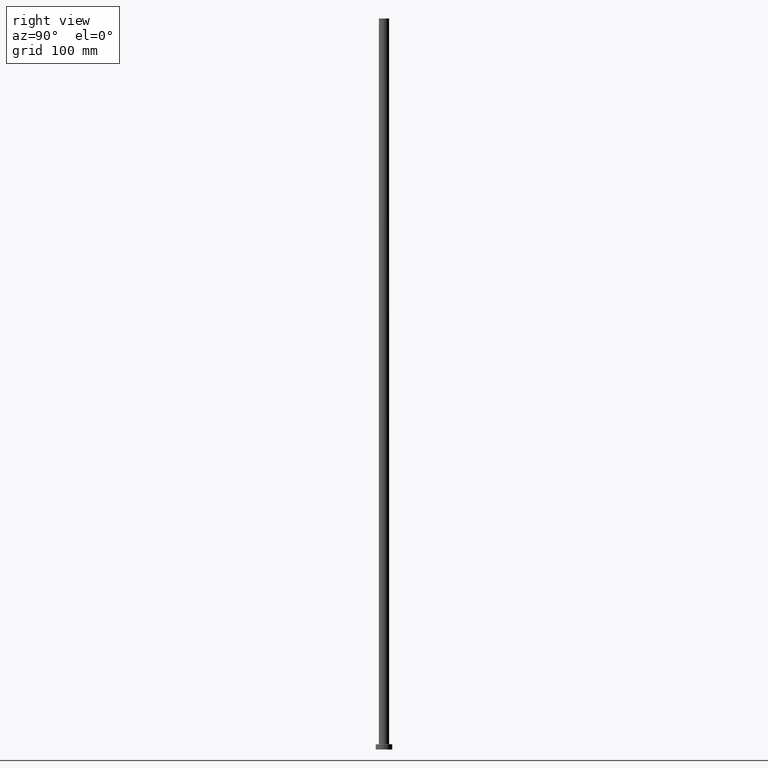
[diagram: clean part render]
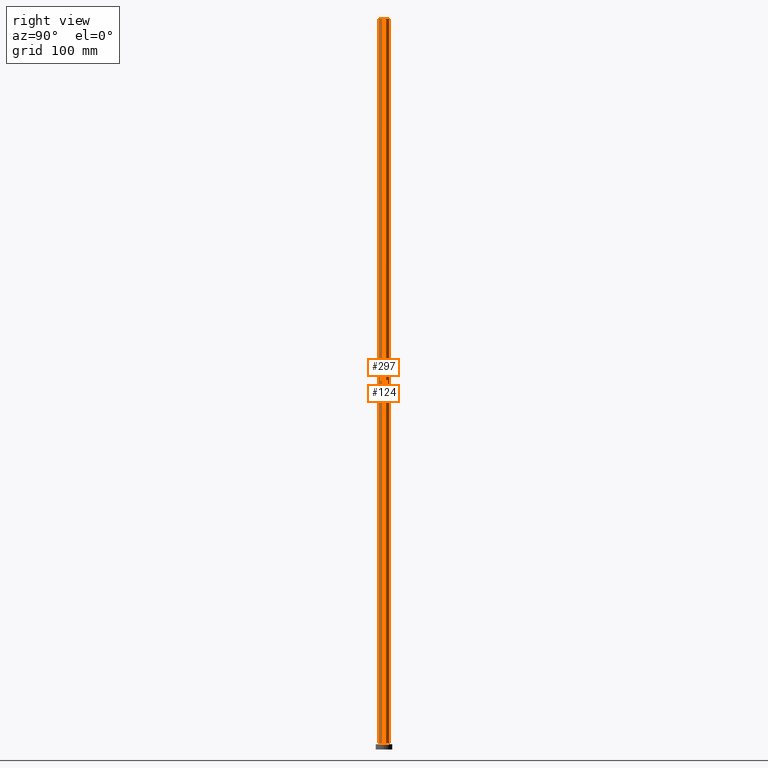
[diagram: same view with one multi-face feature highlighted, each face labeled with its STEP entity id]
A machine part, right view. The highlighted faces form ONE feature: a constant-radius fillet chain: 2 tangent blend faces with common blend radius 5 mm. The faces share edges in the B-rep.
Their STEP definitions:
[1] entity #124 (Cylinder):
#12 = CYLINDRICAL_SURFACE ( 'NONE', #70, 5.000000000000000000 ) ;
#15 = AXIS2_PLACEMENT_3D ( 'NONE', #437, #403, #61 ) ;
#60 = DIRECTION ( 'NONE',  ( -1.000000000000000000, 0.000000000000000000, 0.000000000000000000 ) ) ;
#61 = DIRECTION ( 'NONE',  ( 1.000000000000000000, 0.000000000000000000, 0.000000000000000000 ) ) ;
#65 = CIRCLE ( 'NONE', #316, 5.000000000000000000 ) ;
#70 = AXIS2_PLACEMENT_3D ( 'NONE', #414, #122, #60 ) ;
#83 = CARTESIAN_POINT ( 'NONE',  ( -5.000000000000000000, 0.000000000000000000, 700.0000000000000000 ) ) ;
#84 = VECTOR ( 'NONE', #117, 1000.000000000000000 ) ;
#91 = VECTOR ( 'NONE', #235, 1000.000000000000000 ) ;
#99 = EDGE_CURVE ( 'NONE', #170, #153, #407, .T. ) ;
#101 = CARTESIAN_POINT ( 'NONE',  ( 5.000000000000000000, 6.123233995736766282E-16, 700.0000000000000000 ) ) ;
#117 = DIRECTION ( 'NONE',  ( -0.000000000000000000, -0.000000000000000000, -1.000000000000000000 ) ) ;
#122 = DIRECTION ( 'NONE',  ( -0.000000000000000000, -0.000000000000000000, -1.000000000000000000 ) ) ;
#124 = ADVANCED_FACE ( 'NONE', ( #161 ), #12, .T. ) ;
#146 = VERTEX_POINT ( 'NONE', #343 ) ;
#147 = DIRECTION ( 'NONE',  ( 1.000000000000000000, 0.000000000000000000, 0.000000000000000000 ) ) ;
#153 = VERTEX_POINT ( 'NONE', #440 ) ;
#161 = FACE_OUTER_BOUND ( 'NONE', #432, .T. ) ;
#164 = LINE ( 'NONE', #101, #91 ) ;
#170 = VERTEX_POINT ( 'NONE', #409 ) ;
#211 = CARTESIAN_POINT ( 'NONE',  ( 0.000000000000000000, 0.000000000000000000, 5.499999999999949374 ) ) ;
#212 = ORIENTED_EDGE ( 'NONE', *, *, #425, .T. ) ;
#235 = DIRECTION ( 'NONE',  ( -0.000000000000000000, -0.000000000000000000, -1.000000000000000000 ) ) ;
#266 = EDGE_CURVE ( 'NONE', #146, #153, #65, .T. ) ;
#272 = EDGE_CURVE ( 'NONE', #415, #170, #422, .T. ) ;
#274 = ORIENTED_EDGE ( 'NONE', *, *, #266, .T. ) ;
#279 = ORIENTED_EDGE ( 'NONE', *, *, #99, .F. ) ;
#316 = AXIS2_PLACEMENT_3D ( 'NONE', #211, #323, #147 ) ;
#323 = DIRECTION ( 'NONE',  ( 0.000000000000000000, 0.000000000000000000, 1.000000000000000000 ) ) ;
#337 = ORIENTED_EDGE ( 'NONE', *, *, #272, .F. ) ;
#343 = CARTESIAN_POINT ( 'NONE',  ( 5.000000000000000000, 6.123233995736766282E-16, 5.499999999999949374 ) ) ;
#387 = CARTESIAN_POINT ( 'NONE',  ( 5.000000000000000000, 6.123233995736766282E-16, 700.0000000000000000 ) ) ;
#403 = DIRECTION ( 'NONE',  ( 0.000000000000000000, 0.000000000000000000, 1.000000000000000000 ) ) ;
#407 = LINE ( 'NONE', #83, #84 ) ;
#409 = CARTESIAN_POINT ( 'NONE',  ( -5.000000000000000000, 0.000000000000000000, 700.0000000000000000 ) ) ;
#414 = CARTESIAN_POINT ( 'NONE',  ( 0.000000000000000000, 0.000000000000000000, 700.0000000000000000 ) ) ;
#415 = VERTEX_POINT ( 'NONE', #387 ) ;
#422 = CIRCLE ( 'NONE', #15, 5.000000000000000000 ) ;
#425 = EDGE_CURVE ( 'NONE', #415, #146, #164, .T. ) ;
#432 = EDGE_LOOP ( 'NONE', ( #337, #212, #274, #279 ) ) ;
#437 = CARTESIAN_POINT ( 'NONE',  ( 0.000000000000000000, 0.000000000000000000, 700.0000000000000000 ) ) ;
#440 = CARTESIAN_POINT ( 'NONE',  ( -5.000000000000000000, 0.000000000000000000, 5.499999999999949374 ) ) ;
[2] entity #297 (Cylinder):
#1 = CIRCLE ( 'NONE', #217, 5.000000000000000000 ) ;
#20 = DIRECTION ( 'NONE',  ( -0.000000000000000000, -0.000000000000000000, -1.000000000000000000 ) ) ;
#29 = AXIS2_PLACEMENT_3D ( 'NONE', #413, #20, #131 ) ;
#59 = ORIENTED_EDGE ( 'NONE', *, *, #425, .F. ) ;
#63 = CIRCLE ( 'NONE', #208, 5.000000000000000000 ) ;
#83 = CARTESIAN_POINT ( 'NONE',  ( -5.000000000000000000, 0.000000000000000000, 700.0000000000000000 ) ) ;
#84 = VECTOR ( 'NONE', #117, 1000.000000000000000 ) ;
#91 = VECTOR ( 'NONE', #235, 1000.000000000000000 ) ;
#98 = EDGE_LOOP ( 'NONE', ( #59, #374, #326, #354 ) ) ;
#99 = EDGE_CURVE ( 'NONE', #170, #153, #407, .T. ) ;
#101 = CARTESIAN_POINT ( 'NONE',  ( 5.000000000000000000, 6.123233995736766282E-16, 700.0000000000000000 ) ) ;
#114 = DIRECTION ( 'NONE',  ( 1.000000000000000000, 0.000000000000000000, 0.000000000000000000 ) ) ;
#117 = DIRECTION ( 'NONE',  ( -0.000000000000000000, -0.000000000000000000, -1.000000000000000000 ) ) ;
#126 = CYLINDRICAL_SURFACE ( 'NONE', #29, 5.000000000000000000 ) ;
#131 = DIRECTION ( 'NONE',  ( -1.000000000000000000, 0.000000000000000000, 0.000000000000000000 ) ) ;
#146 = VERTEX_POINT ( 'NONE', #343 ) ;
#153 = VERTEX_POINT ( 'NONE', #440 ) ;
#159 = FACE_OUTER_BOUND ( 'NONE', #98, .T. ) ;
#164 = LINE ( 'NONE', #101, #91 ) ;
#170 = VERTEX_POINT ( 'NONE', #409 ) ;
#208 = AXIS2_PLACEMENT_3D ( 'NONE', #319, #330, #114 ) ;
#217 = AXIS2_PLACEMENT_3D ( 'NONE', #293, #245, #390 ) ;
#235 = DIRECTION ( 'NONE',  ( -0.000000000000000000, -0.000000000000000000, -1.000000000000000000 ) ) ;
#245 = DIRECTION ( 'NONE',  ( 0.000000000000000000, 0.000000000000000000, 1.000000000000000000 ) ) ;
#293 = CARTESIAN_POINT ( 'NONE',  ( 0.000000000000000000, 0.000000000000000000, 700.0000000000000000 ) ) ;
#297 = ADVANCED_FACE ( 'NONE', ( #159 ), #126, .T. ) ;
#319 = CARTESIAN_POINT ( 'NONE',  ( 0.000000000000000000, 0.000000000000000000, 5.499999999999949374 ) ) ;
#326 = ORIENTED_EDGE ( 'NONE', *, *, #99, .T. ) ;
#330 = DIRECTION ( 'NONE',  ( 0.000000000000000000, 0.000000000000000000, 1.000000000000000000 ) ) ;
#343 = CARTESIAN_POINT ( 'NONE',  ( 5.000000000000000000, 6.123233995736766282E-16, 5.499999999999949374 ) ) ;
#354 = ORIENTED_EDGE ( 'NONE', *, *, #439, .T. ) ;
#374 = ORIENTED_EDGE ( 'NONE', *, *, #451, .F. ) ;
#387 = CARTESIAN_POINT ( 'NONE',  ( 5.000000000000000000, 6.123233995736766282E-16, 700.0000000000000000 ) ) ;
#390 = DIRECTION ( 'NONE',  ( 1.000000000000000000, 0.000000000000000000, 0.000000000000000000 ) ) ;
#407 = LINE ( 'NONE', #83, #84 ) ;
#409 = CARTESIAN_POINT ( 'NONE',  ( -5.000000000000000000, 0.000000000000000000, 700.0000000000000000 ) ) ;
#413 = CARTESIAN_POINT ( 'NONE',  ( 0.000000000000000000, 0.000000000000000000, 700.0000000000000000 ) ) ;
#415 = VERTEX_POINT ( 'NONE', #387 ) ;
#425 = EDGE_CURVE ( 'NONE', #415, #146, #164, .T. ) ;
#439 = EDGE_CURVE ( 'NONE', #153, #146, #63, .T. ) ;
#440 = CARTESIAN_POINT ( 'NONE',  ( -5.000000000000000000, 0.000000000000000000, 5.499999999999949374 ) ) ;
#451 = EDGE_CURVE ( 'NONE', #170, #415, #1, .T. ) ;